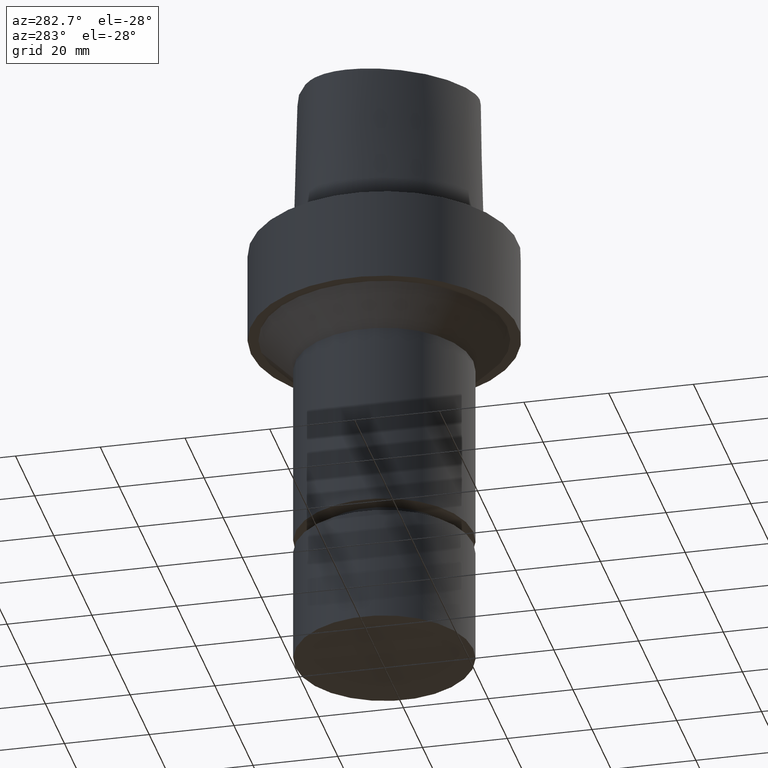
[diagram: clean part render]
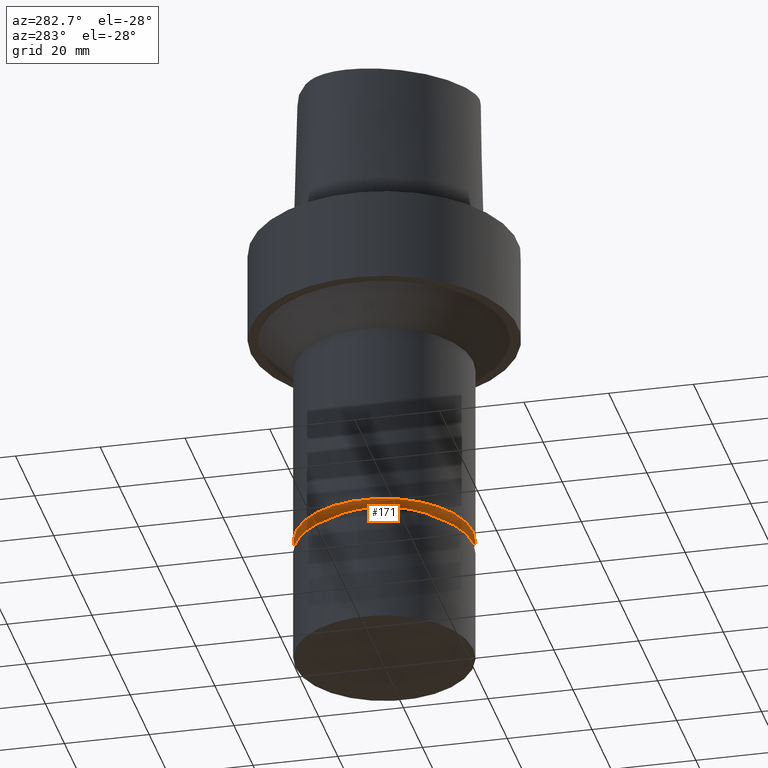
[diagram: same view with one face highlighted and labeled with its STEP entity id]
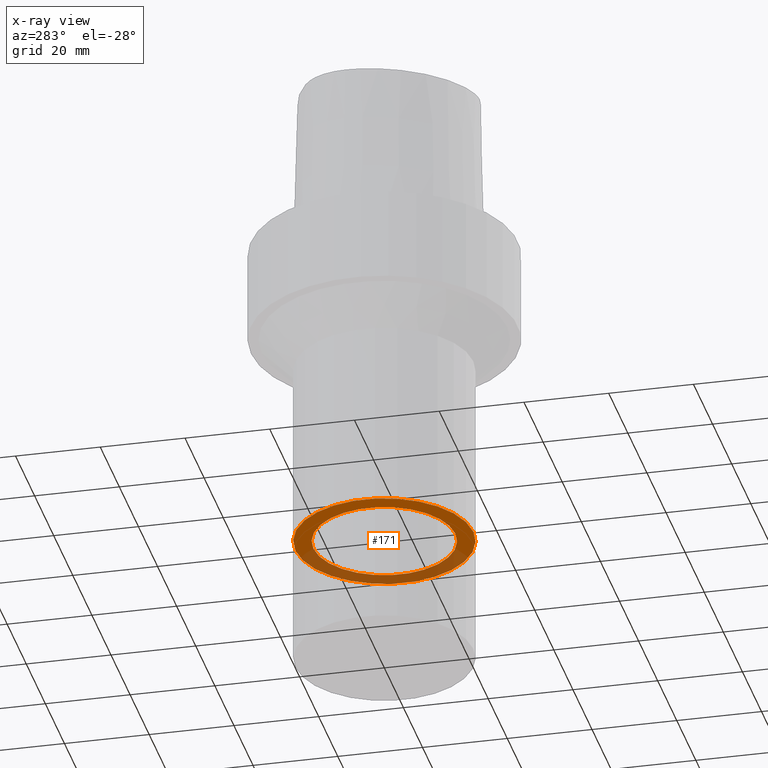
[diagram: x-ray of the same camera — body ghosted, the highlighted face saturated]
A machine part, auxiliary view. The second image highlights one B-rep face of the part: STEP entity #171.
The next image is the same camera in x-ray: the body ghosted, the highlighted face saturated — about 40% of this face is hidden behind the body in this view.
In plain terms, the highlighted planar face has unit normal (0, -0, -1).
Its self-contained STEP definition (entity closure, byte-faithful):
#110=EDGE_CURVE('Unnamed[1]',#248,#248,#249,.T.);
#128=EDGE_CURVE('Unnamed[1]',#276,#276,#277,.T.);
#171=ADVANCED_FACE('Unnamed[1]',(#334,#335),#336,.T.);
#248=VERTEX_POINT('',#522);
#249=CIRCLE('',#523,21.0000000000001);
#276=VERTEX_POINT('',#557);
#277=CIRCLE('',#558,16.7499999999907);
#334=FACE_BOUND('',#733,.T.);
#335=FACE_OUTER_BOUND('',#734,.T.);
#336=PLANE('',#735);
#522=CARTESIAN_POINT('',(4.56180932682389E-015,21.0000000000001,-74.4999999999999));
#523=AXIS2_PLACEMENT_3D('',#790,#791,#792);
#557=CARTESIAN_POINT('',(4.56180932682384E-015,16.7499999999907,-74.4999999999992));
#558=AXIS2_PLACEMENT_3D('',#822,#823,#824);
#733=EDGE_LOOP('',(#882));
#734=EDGE_LOOP('',(#883));
#735=AXIS2_PLACEMENT_3D('',#884,#885,#886);
#790=CARTESIAN_POINT('',(4.56180932682389E-015,9.12361865364777E-015,-74.4999999999999));
#791=DIRECTION('',(6.12323399573677E-017,1.22464679914735E-016,-1.0));
#792=DIRECTION('',(-1.23259516440783E-032,1.0,1.22464679914735E-016));
#822=CARTESIAN_POINT('',(4.56180932682384E-015,9.12361865364768E-015,-74.4999999999992));
#823=DIRECTION('',(6.12323399573677E-017,1.22464679914735E-016,-1.0));
#824=DIRECTION('',(-1.23259516440783E-032,1.0,1.22464679914735E-016));
#882=ORIENTED_EDGE('',*,*,#128,.F.);
#883=ORIENTED_EDGE('',*,*,#110,.T.);
#884=CARTESIAN_POINT('',(4.56180932682386E-015,18.8749999999954,-74.4999999999996));
#885=DIRECTION('',(6.12323399573677E-017,-1.70407791902134E-013,-1.0));
#886=DIRECTION('',(1.04296406924051E-029,1.0,-1.70407791902134E-013));